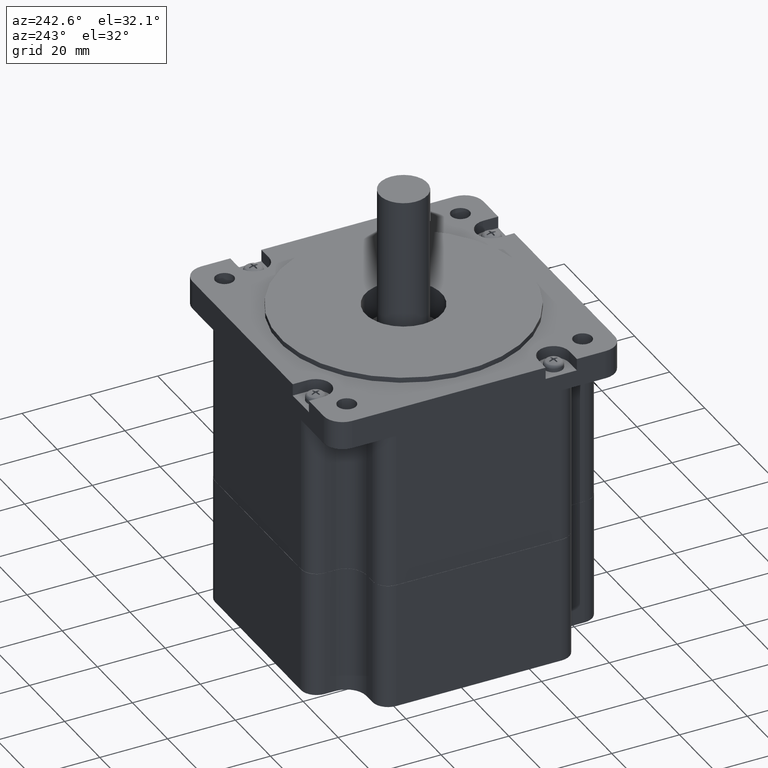
[diagram: clean part render]
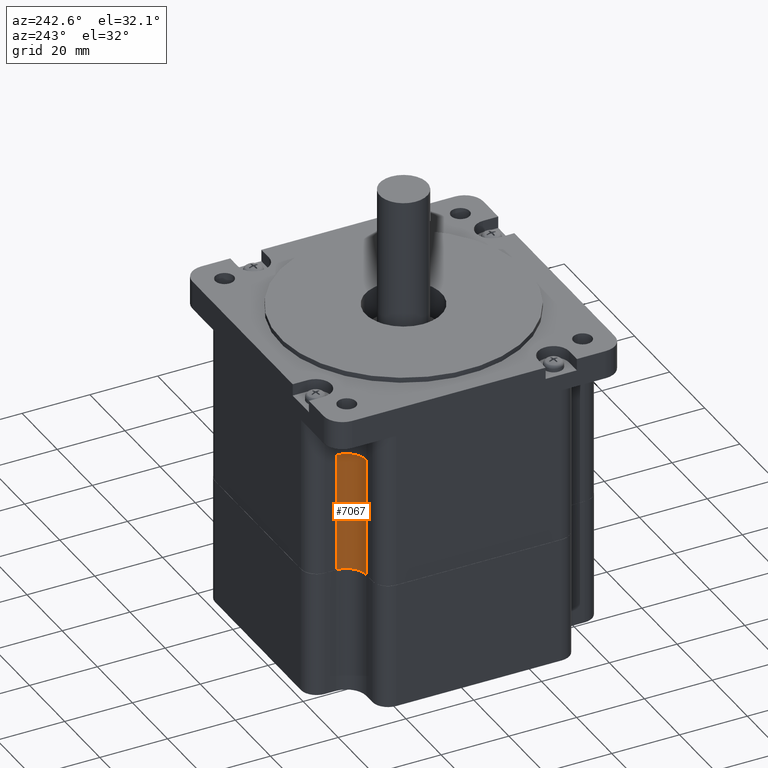
[diagram: same view with one face highlighted and labeled with its STEP entity id]
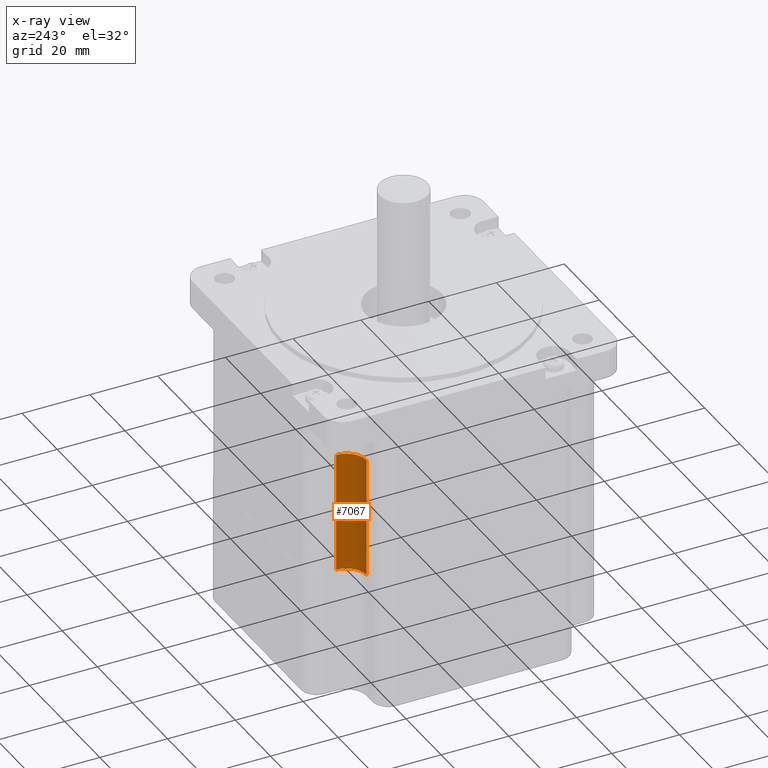
[diagram: x-ray of the same camera — body ghosted, the highlighted face saturated]
A machine part, auxiliary view. The second image highlights one B-rep face of the part: STEP entity #7067.
The next image is the same camera in x-ray: the body ghosted, the highlighted face saturated — about 0% of this face is hidden behind the body in this view.
In plain terms, the highlighted cylindrical surface (edge-blend (fillet) strip) has radius 5.9 mm, axis along (0, 0, 1).
Its self-contained STEP definition (entity closure, byte-faithful):
#6529=CARTESIAN_POINT('',(-29.050000000000015,34.950000000000003,-36.899999999999892));
#6530=VERTEX_POINT('',#6529);
#6531=CARTESIAN_POINT('',(-34.950000000000017,29.050000000000004,-36.899999999999892));
#6532=VERTEX_POINT('',#6531);
#6533=CARTESIAN_POINT('',(-34.95000000000001,34.950000000000003,-36.899999999999913));
#6534=DIRECTION('',(0.0,0.0,-1.0));
#6535=DIRECTION('',(0.707106781186547,-0.707106781186548,0.0));
#6536=AXIS2_PLACEMENT_3D('',#6533,#6534,#6535);
#6537=CIRCLE('',#6536,5.900000000000005);
#6538=EDGE_CURVE('',#6530,#6532,#6537,.T.);
#7009=CARTESIAN_POINT('',(-29.049999999999994,34.950000000000003,-1.499999999999947));
#7010=VERTEX_POINT('',#7009);
#7011=CARTESIAN_POINT('',(-29.050000000000011,34.950000000000003,-1.499999999999947));
#7012=DIRECTION('',(0.0,0.0,-1.0));
#7013=VECTOR('',#7012,35.399999999999949);
#7014=LINE('',#7011,#7013);
#7015=EDGE_CURVE('',#7010,#6530,#7014,.T.);
#7027=CARTESIAN_POINT('',(-34.95000000000001,34.950000000000003,-94.899999999999977));
#7028=DIRECTION('',(0.0,0.0,1.0));
#7029=DIRECTION('',(0.707106781186547,-0.707106781186548,0.0));
#7030=AXIS2_PLACEMENT_3D('',#7027,#7028,#7029);
#7031=CYLINDRICAL_SURFACE('',#7030,5.900000000000005);
#7032=ORIENTED_EDGE('',*,*,#6538,.T.);
#7033=CARTESIAN_POINT('',(-34.949999999999989,29.050000000000004,-1.499999999999947));
#7034=VERTEX_POINT('',#7033);
#7035=CARTESIAN_POINT('',(-34.95000000000001,29.050000000000004,-36.899999999999892));
#7036=DIRECTION('',(0.0,0.0,1.0));
#7037=VECTOR('',#7036,35.399999999999949);
#7038=LINE('',#7035,#7037);
#7039=EDGE_CURVE('',#6532,#7034,#7038,.T.);
#7040=ORIENTED_EDGE('',*,*,#7039,.T.);
#7041=CARTESIAN_POINT('',(-34.949999999999989,29.050000000000004,-1.399999999999931));
#7042=VERTEX_POINT('',#7041);
#7043=CARTESIAN_POINT('',(-34.949999999999989,29.050000000000004,-1.499999999999947));
#7044=DIRECTION('',(0.0,0.0,1.0));
#7045=VECTOR('',#7044,0.100000000000016);
#7046=LINE('',#7043,#7045);
#7047=EDGE_CURVE('',#7034,#7042,#7046,.T.);
#7048=ORIENTED_EDGE('',*,*,#7047,.T.);
#7049=CARTESIAN_POINT('',(-29.049999999999994,34.950000000000003,-1.399999999999931));
#7050=VERTEX_POINT('',#7049);
#7051=CARTESIAN_POINT('',(-34.95000000000001,34.950000000000003,-1.399999999999931));
#7052=DIRECTION('',(0.0,0.0,1.0));
#7053=DIRECTION('',(0.707106781186547,-0.707106781186548,0.0));
#7054=AXIS2_PLACEMENT_3D('',#7051,#7052,#7053);
#7055=CIRCLE('',#7054,5.900000000000002);
#7056=EDGE_CURVE('',#7042,#7050,#7055,.T.);
#7057=ORIENTED_EDGE('',*,*,#7056,.T.);
#7058=CARTESIAN_POINT('',(-29.049999999999994,34.950000000000003,-1.499999999999947));
#7059=DIRECTION('',(0.0,0.0,1.0));
#7060=VECTOR('',#7059,0.100000000000016);
#7061=LINE('',#7058,#7060);
#7062=EDGE_CURVE('',#7010,#7050,#7061,.T.);
#7063=ORIENTED_EDGE('',*,*,#7062,.F.);
#7064=ORIENTED_EDGE('',*,*,#7015,.T.);
#7065=EDGE_LOOP('',(#7032,#7040,#7048,#7057,#7063,#7064));
#7066=FACE_OUTER_BOUND('',#7065,.T.);
#7067=ADVANCED_FACE('',(#7066),#7031,.F.);